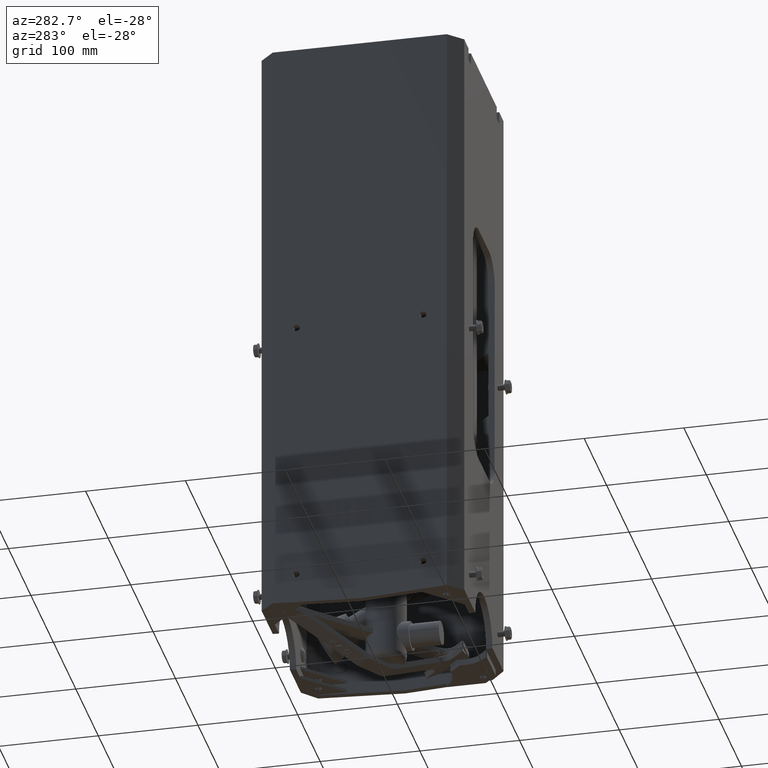
[diagram: clean part render]
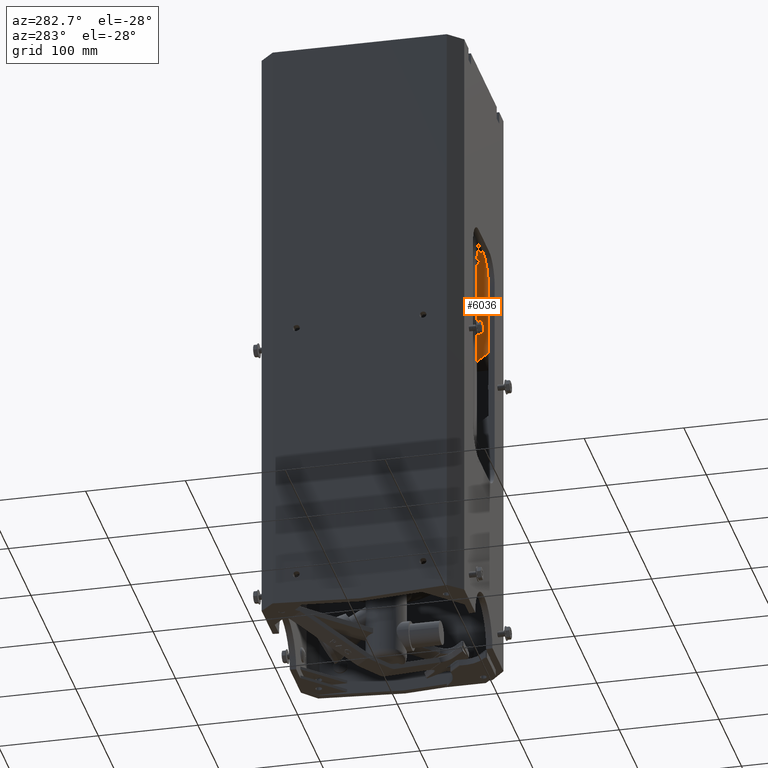
[diagram: same view with one face highlighted and labeled with its STEP entity id]
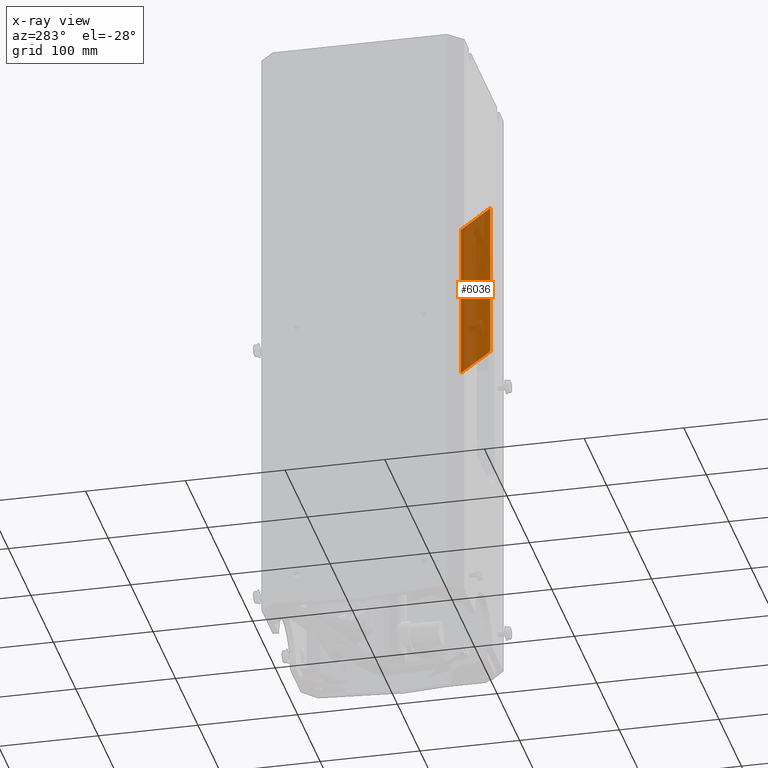
[diagram: x-ray of the same camera — body ghosted, the highlighted face saturated]
A machine part, auxiliary view. The second image highlights one B-rep face of the part: STEP entity #6036.
The next image is the same camera in x-ray: the body ghosted, the highlighted face saturated — about 59% of this face is hidden behind the body in this view.
In plain terms, the highlighted planar face has unit normal (0.7071, -0.7071, 0).
Its self-contained STEP definition (entity closure, byte-faithful):
#218 = EDGE_CURVE ( 'NONE', #20564, #28026, #15027, .T. ) ;
#691 = VECTOR ( 'NONE', #8929, 39.37007874015748100 ) ;
#3850 = CARTESIAN_POINT ( 'NONE',  ( 3.750000000000010200, -2.240846073967600400, 7.716875000000000800 ) ) ;
#3946 = DIRECTION ( 'NONE',  ( 0.0000000000000000000, 0.0000000000000000000, -1.000000000000000000 ) ) ;
#4622 = LINE ( 'NONE', #20877, #17290 ) ;
#4844 = DIRECTION ( 'NONE',  ( -0.7071067811865483500, -0.7071067811865468000, 0.0000000000000000000 ) ) ;
#5163 = VECTOR ( 'NONE', #4844, 39.37007874015748100 ) ;
#5902 = PLANE ( 'NONE',  #13634 ) ;
#5912 = LINE ( 'NONE', #23969, #5163 ) ;
#6036 = ADVANCED_FACE ( 'NONE', ( #18852 ), #5902, .F. ) ;
#6596 = DIRECTION ( 'NONE',  ( 0.0000000000000000000, 0.0000000000000000000, -1.000000000000000000 ) ) ;
#8929 = DIRECTION ( 'NONE',  ( -0.7071067811865483500, -0.7071067811865468000, 0.0000000000000000000 ) ) ;
#9441 = VECTOR ( 'NONE', #3946, 39.37007874015748100 ) ;
#9761 = EDGE_CURVE ( 'NONE', #20564, #30647, #14116, .T. ) ;
#11938 = CARTESIAN_POINT ( 'NONE',  ( 2.240846073967597700, -3.750000000000009300, 1.466875000000000800 ) ) ;
#12256 = VERTEX_POINT ( 'NONE', #11938 ) ;
#13092 = DIRECTION ( 'NONE',  ( 0.7071067811865468000, -0.7071067811865482400, 0.0000000000000000000 ) ) ;
#13634 = AXIS2_PLACEMENT_3D ( 'NONE', #22599, #13092, #29823 ) ;
#14116 = LINE ( 'NONE', #27842, #691 ) ;
#15027 = LINE ( 'NONE', #3850, #9441 ) ;
#15715 = ORIENTED_EDGE ( 'NONE', *, *, #9761, .F. ) ;
#15920 = CARTESIAN_POINT ( 'NONE',  ( 3.750000000000010200, -2.240846073967600400, 1.466875000000000800 ) ) ;
#16151 = CARTESIAN_POINT ( 'NONE',  ( 2.240846073967597700, -3.750000000000009300, 7.716875000000000800 ) ) ;
#17290 = VECTOR ( 'NONE', #6596, 39.37007874015748100 ) ;
#18852 = FACE_OUTER_BOUND ( 'NONE', #29363, .T. ) ;
#20564 = VERTEX_POINT ( 'NONE', #29746 ) ;
#20877 = CARTESIAN_POINT ( 'NONE',  ( 2.240846073967597700, -3.750000000000009300, 7.716875000000000800 ) ) ;
#21259 = ORIENTED_EDGE ( 'NONE', *, *, #25199, .T. ) ;
#22599 = CARTESIAN_POINT ( 'NONE',  ( 3.750000000000010200, -2.240846073967600400, 7.716875000000000800 ) ) ;
#23798 = ORIENTED_EDGE ( 'NONE', *, *, #29758, .F. ) ;
#23969 = CARTESIAN_POINT ( 'NONE',  ( 3.750000000000010200, -2.240846073967600400, 1.466875000000000800 ) ) ;
#25199 = EDGE_CURVE ( 'NONE', #28026, #12256, #5912, .T. ) ;
#26293 = ORIENTED_EDGE ( 'NONE', *, *, #218, .T. ) ;
#27842 = CARTESIAN_POINT ( 'NONE',  ( 3.750000000000010200, -2.240846073967600400, 7.716875000000000800 ) ) ;
#28026 = VERTEX_POINT ( 'NONE', #15920 ) ;
#29363 = EDGE_LOOP ( 'NONE', ( #21259, #23798, #15715, #26293 ) ) ;
#29746 = CARTESIAN_POINT ( 'NONE',  ( 3.750000000000010200, -2.240846073967600400, 7.716875000000000800 ) ) ;
#29758 = EDGE_CURVE ( 'NONE', #30647, #12256, #4622, .T. ) ;
#29823 = DIRECTION ( 'NONE',  ( 0.7071067811865483500, 0.7071067811865469100, 0.0000000000000000000 ) ) ;
#30647 = VERTEX_POINT ( 'NONE', #16151 ) ;